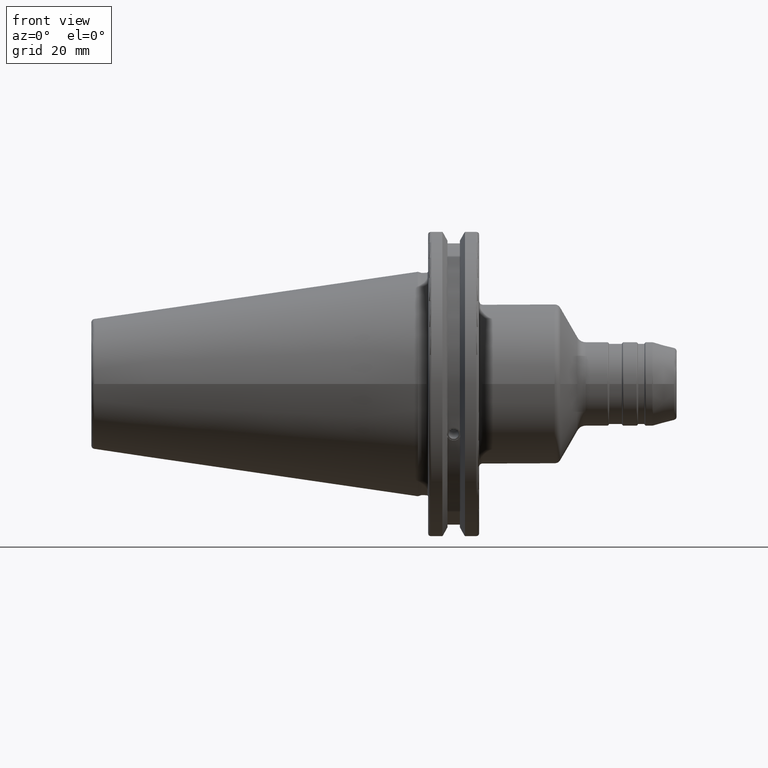
[diagram: clean part render]
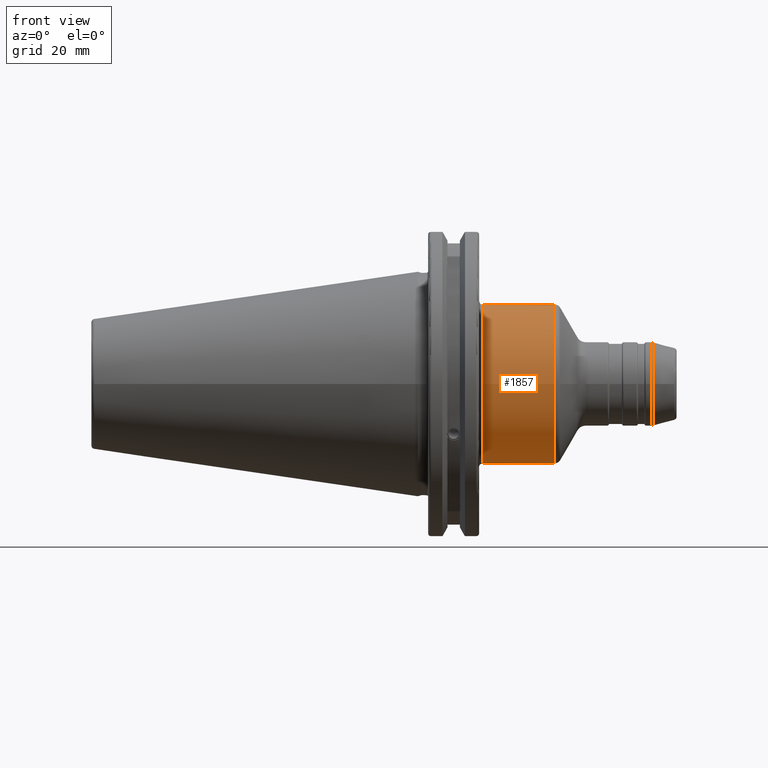
[diagram: same view with one face highlighted and labeled with its STEP entity id]
A machine part, front view. The second image highlights one B-rep face of the part: STEP entity #1857.
In plain terms, the highlighted cylindrical surface (bore or boss wall) has radius 24.75 mm, axis along (1, 0, 0).
Its self-contained STEP definition (entity closure, byte-faithful):
#191=FACE_OUTER_BOUND('',#301,.T.);
#301=EDGE_LOOP('',(#1367,#1368,#1369,#1370,#1371,#1372));
#417=LINE('',#3013,#521);
#521=VECTOR('',#2389,24.75);
#667=CIRCLE('',#2045,24.75);
#668=CIRCLE('',#2046,24.75);
#669=CIRCLE('',#2048,24.75);
#670=CIRCLE('',#2049,24.75);
#790=VERTEX_POINT('',#3006);
#791=VERTEX_POINT('',#3008);
#792=VERTEX_POINT('',#3012);
#793=VERTEX_POINT('',#3014);
#1008=EDGE_CURVE('',#790,#791,#667,.T.);
#1009=EDGE_CURVE('',#791,#790,#668,.T.);
#1010=EDGE_CURVE('',#791,#792,#417,.T.);
#1011=EDGE_CURVE('',#793,#792,#669,.T.);
#1012=EDGE_CURVE('',#792,#793,#670,.T.);
#1367=ORIENTED_EDGE('',*,*,#1009,.F.);
#1368=ORIENTED_EDGE('',*,*,#1010,.T.);
#1369=ORIENTED_EDGE('',*,*,#1011,.F.);
#1370=ORIENTED_EDGE('',*,*,#1012,.F.);
#1371=ORIENTED_EDGE('',*,*,#1010,.F.);
#1372=ORIENTED_EDGE('',*,*,#1008,.F.);
#1807=CYLINDRICAL_SURFACE('',#2047,24.75);
#1857=ADVANCED_FACE('',(#191),#1807,.T.);
#2045=AXIS2_PLACEMENT_3D('',#3009,#2383,#2384);
#2046=AXIS2_PLACEMENT_3D('',#3010,#2385,#2386);
#2047=AXIS2_PLACEMENT_3D('',#3011,#2387,#2388);
#2048=AXIS2_PLACEMENT_3D('',#3015,#2390,#2391);
#2049=AXIS2_PLACEMENT_3D('',#3016,#2392,#2393);
#2383=DIRECTION('center_axis',(1.,0.,0.));
#2384=DIRECTION('ref_axis',(0.,-1.,1.83697019872103E-16));
#2385=DIRECTION('center_axis',(1.,0.,0.));
#2386=DIRECTION('ref_axis',(0.,-1.,1.83697019872103E-16));
#2387=DIRECTION('center_axis',(1.,0.,0.));
#2388=DIRECTION('ref_axis',(0.,1.,0.));
#2389=DIRECTION('',(-1.,0.,0.));
#2390=DIRECTION('center_axis',(-1.,0.,0.));
#2391=DIRECTION('ref_axis',(0.,-1.,-1.22464679914735E-16));
#2392=DIRECTION('center_axis',(-1.,0.,0.));
#2393=DIRECTION('ref_axis',(0.,-1.,-1.22464679914735E-16));
#3006=CARTESIAN_POINT('',(42.5614337986427,-3.0310008278897E-15,24.75));
#3008=CARTESIAN_POINT('',(42.5614337986427,-24.75,-3.0310008278897E-15));
#3009=CARTESIAN_POINT('Origin',(42.5614337986427,0.,0.));
#3010=CARTESIAN_POINT('Origin',(42.5614337986427,0.,0.));
#3011=CARTESIAN_POINT('Origin',(31.383067168511,0.,0.));
#3012=CARTESIAN_POINT('',(20.05,-24.75,-3.0310008278897E-15));
#3013=CARTESIAN_POINT('',(31.383067168511,-24.75,-3.0310008278897E-15));
#3014=CARTESIAN_POINT('',(20.05,-3.0310008278897E-15,-24.75));
#3015=CARTESIAN_POINT('Origin',(20.05,0.,0.));
#3016=CARTESIAN_POINT('Origin',(20.05,0.,0.));